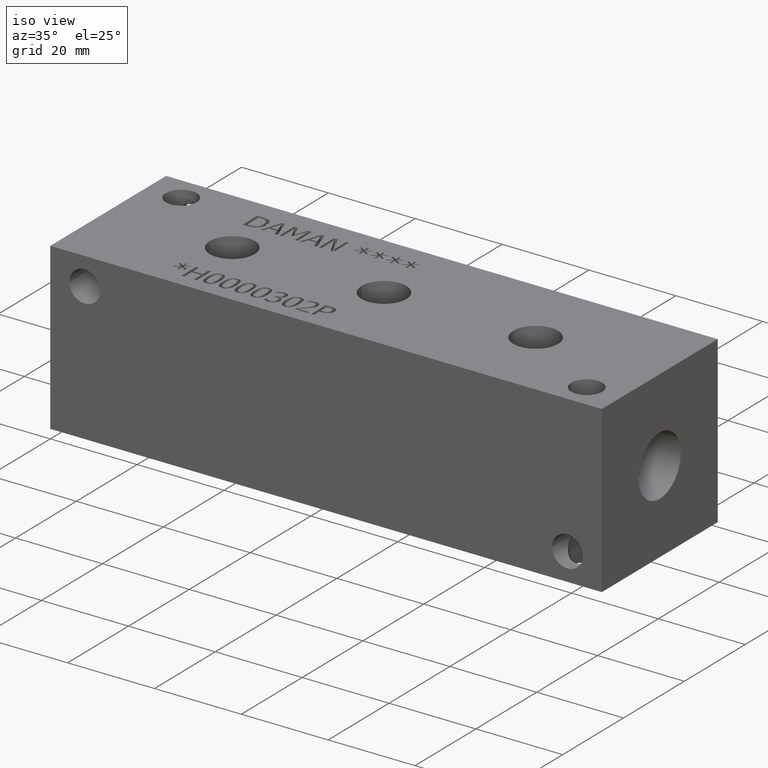
[diagram: clean part render]
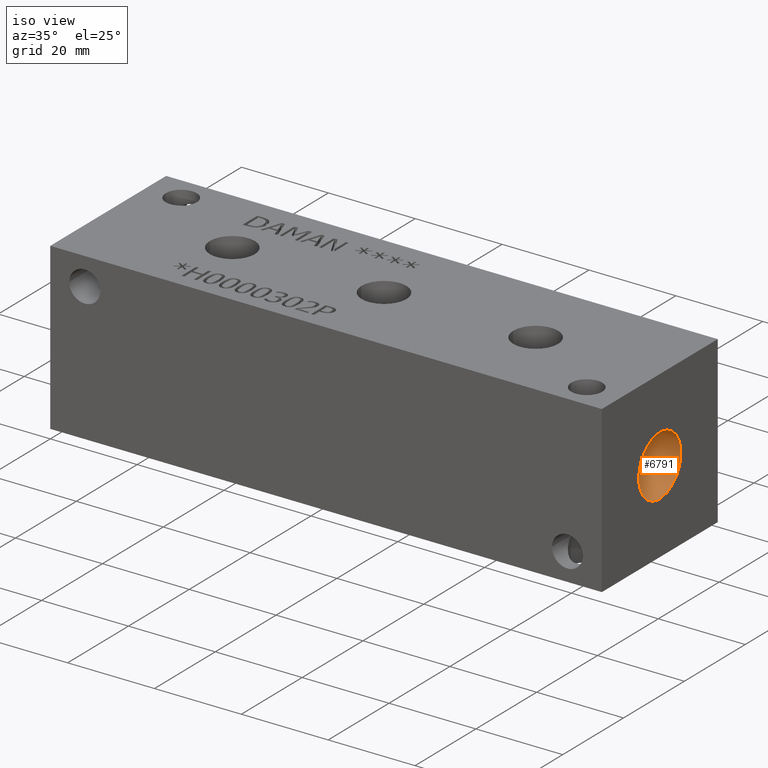
[diagram: same view with one face highlighted and labeled with its STEP entity id]
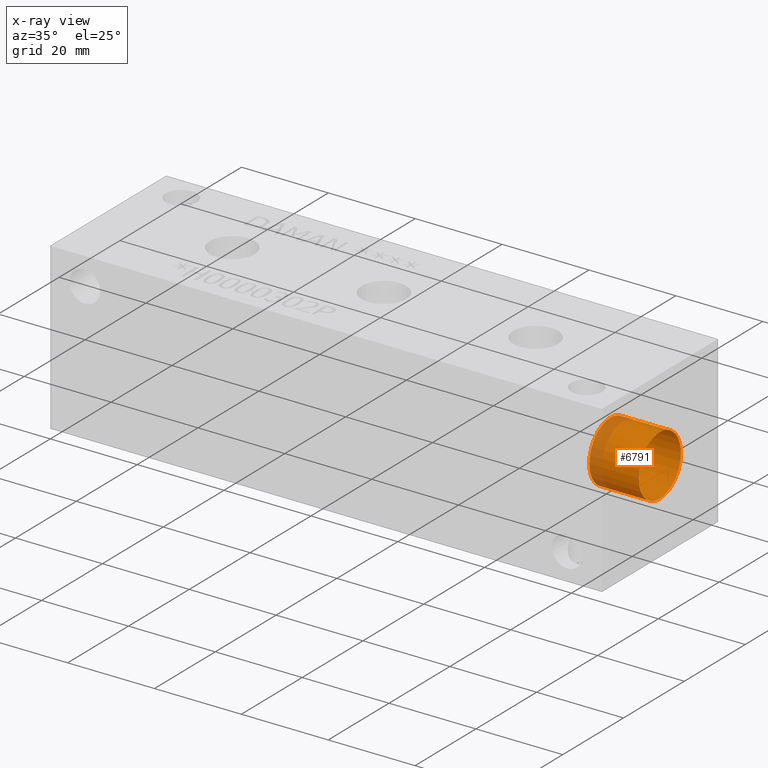
[diagram: x-ray of the same camera — body ghosted, the highlighted face saturated]
A machine part, iso view. The second image highlights one B-rep face of the part: STEP entity #6791.
The next image is the same camera in x-ray: the body ghosted, the highlighted face saturated — about 16% of this face is hidden behind the body in this view.
In plain terms, the highlighted cylindrical surface (bore or boss wall) has radius 6.9342 mm, axis along (1, 0, 0).
Its self-contained STEP definition (entity closure, byte-faithful):
#41=CYLINDRICAL_SURFACE('',#7088,6.9342);
#80=CIRCLE('',#7085,6.9342);
#81=CIRCLE('',#7086,6.9342);
#83=CIRCLE('',#7089,6.9342);
#84=CIRCLE('',#7090,6.9342);
#683=FACE_OUTER_BOUND('',#1063,.T.);
#1063=EDGE_LOOP('',(#5989,#5990,#5991,#5992,#5993,#5994));
#1737=LINE('',#11599,#2403);
#2403=VECTOR('',#8312,6.9342);
#3237=VERTEX_POINT('',#11588);
#3238=VERTEX_POINT('',#11589);
#3240=VERTEX_POINT('',#11595);
#3241=VERTEX_POINT('',#11596);
#4162=EDGE_CURVE('',#3237,#3238,#80,.T.);
#4163=EDGE_CURVE('',#3238,#3237,#81,.T.);
#4165=EDGE_CURVE('',#3240,#3241,#83,.T.);
#4166=EDGE_CURVE('',#3241,#3240,#84,.T.);
#4167=EDGE_CURVE('',#3241,#3238,#1737,.T.);
#5989=ORIENTED_EDGE('',*,*,#4165,.F.);
#5990=ORIENTED_EDGE('',*,*,#4166,.F.);
#5991=ORIENTED_EDGE('',*,*,#4167,.T.);
#5992=ORIENTED_EDGE('',*,*,#4162,.F.);
#5993=ORIENTED_EDGE('',*,*,#4163,.F.);
#5994=ORIENTED_EDGE('',*,*,#4167,.F.);
#6791=ADVANCED_FACE('',(#683),#41,.F.);
#7085=AXIS2_PLACEMENT_3D('',#11590,#8300,#8301);
#7086=AXIS2_PLACEMENT_3D('',#11591,#8302,#8303);
#7088=AXIS2_PLACEMENT_3D('',#11594,#8306,#8307);
#7089=AXIS2_PLACEMENT_3D('',#11597,#8308,#8309);
#7090=AXIS2_PLACEMENT_3D('',#11598,#8310,#8311);
#8300=DIRECTION('center_axis',(1.,0.,0.));
#8301=DIRECTION('ref_axis',(0.,1.,0.));
#8302=DIRECTION('center_axis',(1.,0.,0.));
#8303=DIRECTION('ref_axis',(0.,1.,0.));
#8306=DIRECTION('center_axis',(1.,0.,0.));
#8307=DIRECTION('ref_axis',(0.,1.,0.));
#8308=DIRECTION('center_axis',(-1.,0.,0.));
#8309=DIRECTION('ref_axis',(0.,1.,0.));
#8310=DIRECTION('center_axis',(-1.,0.,0.));
#8311=DIRECTION('ref_axis',(0.,1.,0.));
#8312=DIRECTION('',(-1.,0.,0.));
#11588=CARTESIAN_POINT('',(115.5954,25.9842,19.05));
#11589=CARTESIAN_POINT('',(115.5954,12.1158,19.05));
#11590=CARTESIAN_POINT('Origin',(115.5954,19.05,19.05));
#11591=CARTESIAN_POINT('Origin',(115.5954,19.05,19.05));
#11594=CARTESIAN_POINT('Origin',(121.2977,19.05,19.05));
#11595=CARTESIAN_POINT('',(127.,25.9842,19.05));
#11596=CARTESIAN_POINT('',(127.,12.1158,19.05));
#11597=CARTESIAN_POINT('Origin',(127.,19.05,19.05));
#11598=CARTESIAN_POINT('Origin',(127.,19.05,19.05));
#11599=CARTESIAN_POINT('',(121.2977,12.1158,19.05));